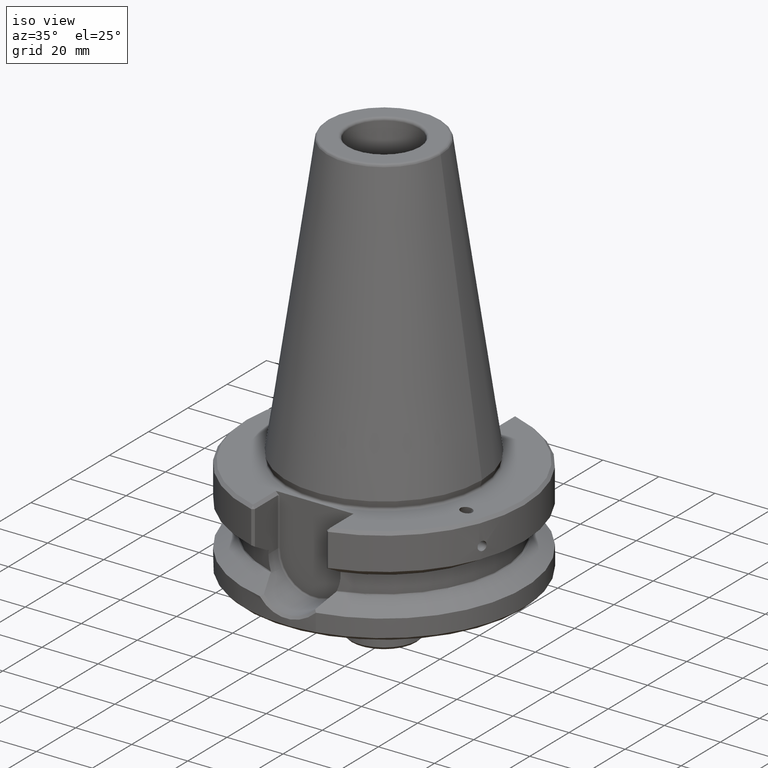
[diagram: clean part render]
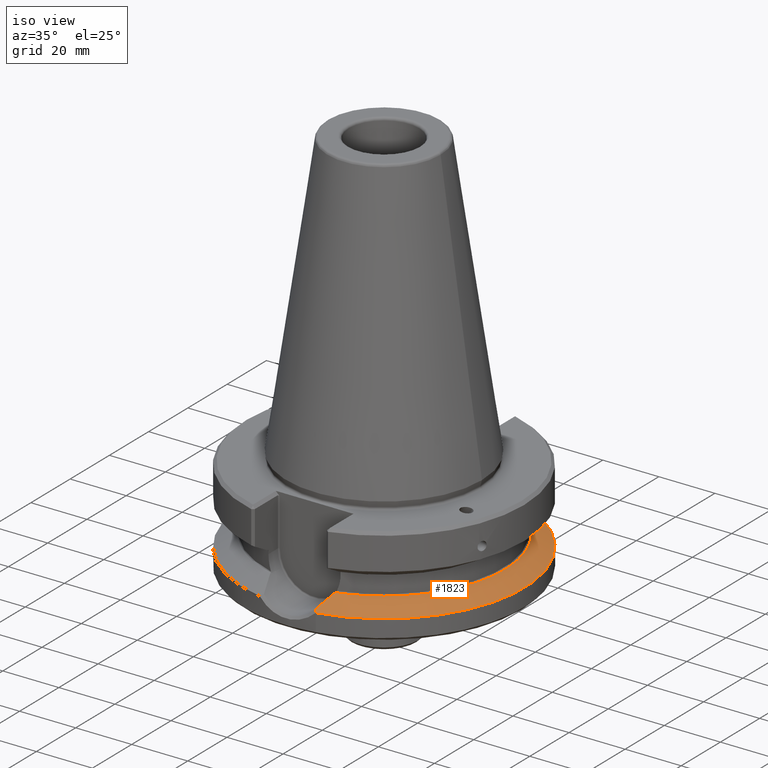
[diagram: same view with one face highlighted and labeled with its STEP entity id]
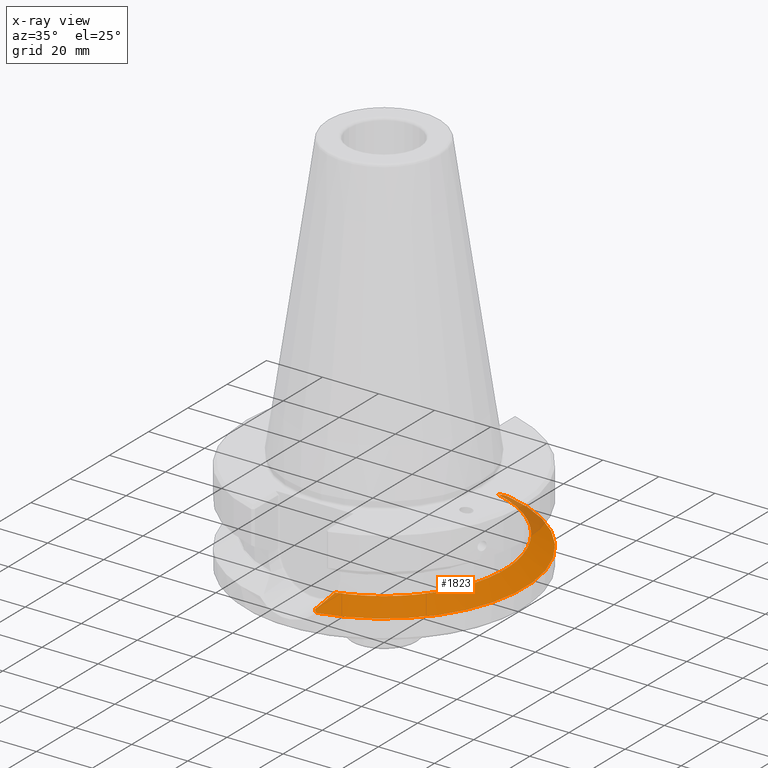
[diagram: x-ray of the same camera — body ghosted, the highlighted face saturated]
A machine part, iso view. The second image highlights one B-rep face of the part: STEP entity #1823.
The next image is the same camera in x-ray: the body ghosted, the highlighted face saturated — about 7% of this face is hidden behind the body in this view.
In plain terms, the highlighted conical surface has half-angle 60 deg.
Its self-contained STEP definition (entity closure, byte-faithful):
#183=CONICAL_SURFACE('',#1949,50.,1.0471975511966);
#212=B_SPLINE_CURVE_WITH_KNOTS('',3,(#2645,#2646,#2647,#2648),
 .UNSPECIFIED.,.F.,.F.,(4,4),(0.000889728530337611,0.00883470295827694),
 .UNSPECIFIED.);
#215=B_SPLINE_CURVE_WITH_KNOTS('',3,(#2687,#2688,#2689,#2690),
 .UNSPECIFIED.,.F.,.F.,(4,4),(0.00237160152804646,0.0103164352116421),
 .UNSPECIFIED.);
#231=B_SPLINE_CURVE_WITH_KNOTS('',3,(#2842,#2843,#2844,#2845),
 .UNSPECIFIED.,.F.,.F.,(4,4),(0.,0.00131535943800314),.UNSPECIFIED.);
#233=B_SPLINE_CURVE_WITH_KNOTS('',3,(#2875,#2876,#2877,#2878),
 .UNSPECIFIED.,.F.,.F.,(4,4),(0.,0.00131510166148393),.UNSPECIFIED.);
#504=ORIENTED_EDGE('',*,*,#644,.T.);
#505=ORIENTED_EDGE('',*,*,#696,.T.);
#506=ORIENTED_EDGE('',*,*,#711,.T.);
#507=ORIENTED_EDGE('',*,*,#694,.T.);
#508=ORIENTED_EDGE('',*,*,#661,.T.);
#509=ORIENTED_EDGE('',*,*,#611,.F.);
#611=EDGE_CURVE('',#776,#777,#873,.T.);
#644=EDGE_CURVE('',#776,#797,#212,.T.);
#661=EDGE_CURVE('',#810,#777,#215,.T.);
#694=EDGE_CURVE('',#825,#810,#231,.T.);
#696=EDGE_CURVE('',#797,#826,#233,.T.);
#711=EDGE_CURVE('',#826,#825,#891,.T.);
#776=VERTEX_POINT('',#2518);
#777=VERTEX_POINT('',#2519);
#797=VERTEX_POINT('',#2644);
#810=VERTEX_POINT('',#2691);
#825=VERTEX_POINT('',#2846);
#826=VERTEX_POINT('',#2879);
#873=CIRCLE('',#1886,43.0121778264911);
#891=CIRCLE('',#1950,50.);
#981=EDGE_LOOP('',(#504,#505,#506,#507,#508,#509));
#1108=FACE_BOUND('',#981,.T.);
#1823=ADVANCED_FACE('',(#1108),#183,.T.);
#1886=AXIS2_PLACEMENT_3D('',#2517,#2075,#2076);
#1949=AXIS2_PLACEMENT_3D('',#2944,#2241,#2242);
#1950=AXIS2_PLACEMENT_3D('',#2945,#2243,#2244);
#2075=DIRECTION('',(0.,0.,1.));
#2076=DIRECTION('',(1.,0.,0.));
#2241=DIRECTION('',(0.,0.,-1.));
#2242=DIRECTION('',(-1.,0.,0.));
#2243=DIRECTION('',(0.,0.,1.));
#2244=DIRECTION('',(1.,0.,0.));
#2517=CARTESIAN_POINT('',(0.,0.,-26.7));
#2518=CARTESIAN_POINT('',(11.5896505555603,-41.4213404102003,-26.7));
#2519=CARTESIAN_POINT('',(11.5896505555603,41.4213404102003,-26.7));
#2644=CARTESIAN_POINT('',(9.15844667416012,-48.1484688589928,-30.163857811546));
#2645=CARTESIAN_POINT('',(11.5896505555603,-41.4213404102003,-26.7));
#2646=CARTESIAN_POINT('',(11.0163909143212,-43.7348003993898,-27.897095300823));
#2647=CARTESIAN_POINT('',(10.247279829985,-45.9904241435771,-29.0573233240306));
#2648=CARTESIAN_POINT('',(9.15832128378966,-48.1482987508999,-30.1637479032246));
#2687=CARTESIAN_POINT('',(9.15837915581159,48.1481840712721,-30.1636891026037));
#2688=CARTESIAN_POINT('',(10.2473064115321,45.9903440223082,-29.0572821068149));
#2689=CARTESIAN_POINT('',(11.0164010695524,43.7347594167018,-27.8970740944121));
#2690=CARTESIAN_POINT('',(11.5896505555603,41.4213404102003,-26.7));
#2691=CARTESIAN_POINT('',(9.15805453988183,48.1483350932699,-30.1637397161071));
#2842=CARTESIAN_POINT('',(9.99048111206193,48.9917369272568,-30.7344210129246));
#2843=CARTESIAN_POINT('',(9.71372589770799,48.710418737538,-30.5433505845872));
#2844=CARTESIAN_POINT('',(9.4361711264685,48.429321954507,-30.3531128756819));
#2845=CARTESIAN_POINT('',(9.15772937277287,48.1484865219463,-30.163790547977));
#2846=CARTESIAN_POINT('',(9.99048111206193,48.9917369272568,-30.7344210129246));
#2875=CARTESIAN_POINT('',(9.15848833445556,-48.1485255961501,-30.1638945877283));
#2876=CARTESIAN_POINT('',(9.43686999370836,-48.4293093200046,-30.3531830265094));
#2877=CARTESIAN_POINT('',(9.71436625290706,-48.7103533940198,-30.5433860157533));
#2878=CARTESIAN_POINT('',(9.99106427977181,-48.9916180030571,-30.7344210129246));
#2879=CARTESIAN_POINT('',(9.99106427977178,-48.9916180030571,-30.7344210129246));
#2944=CARTESIAN_POINT('',(0.,0.,-30.7344210129246));
#2945=CARTESIAN_POINT('',(0.,0.,-30.7344210129246));